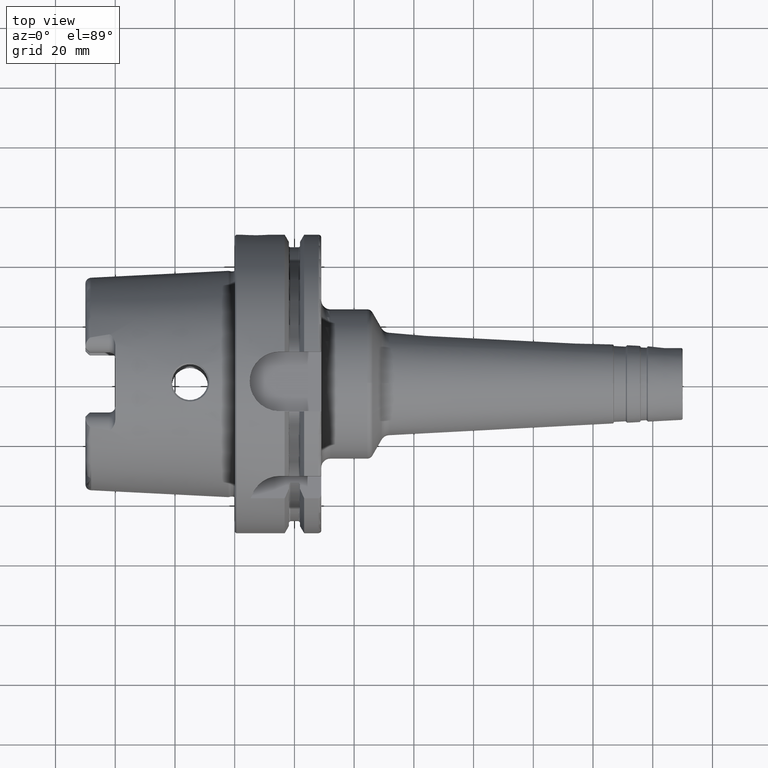
[diagram: clean part render]
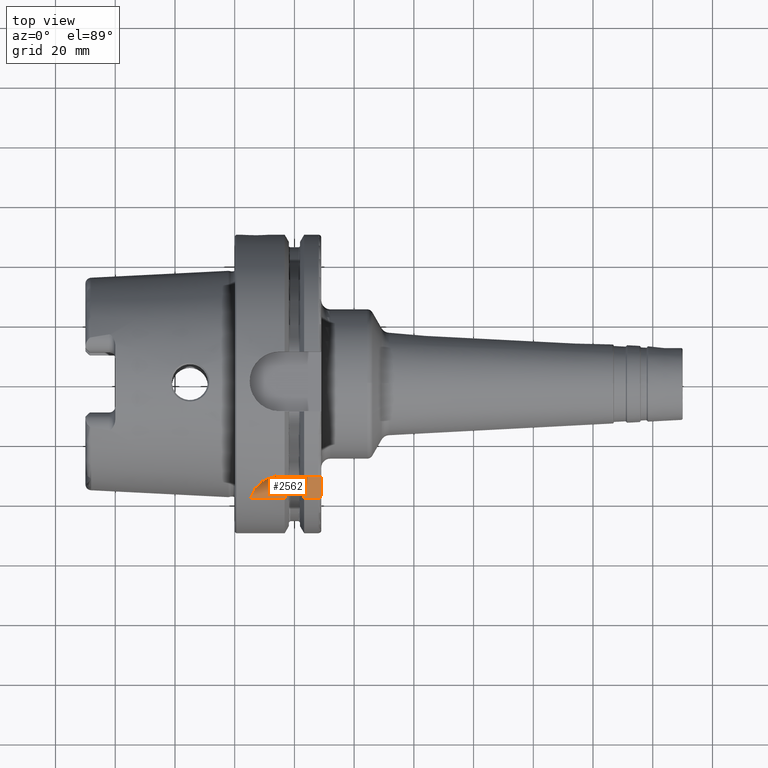
[diagram: same view with one face highlighted and labeled with its STEP entity id]
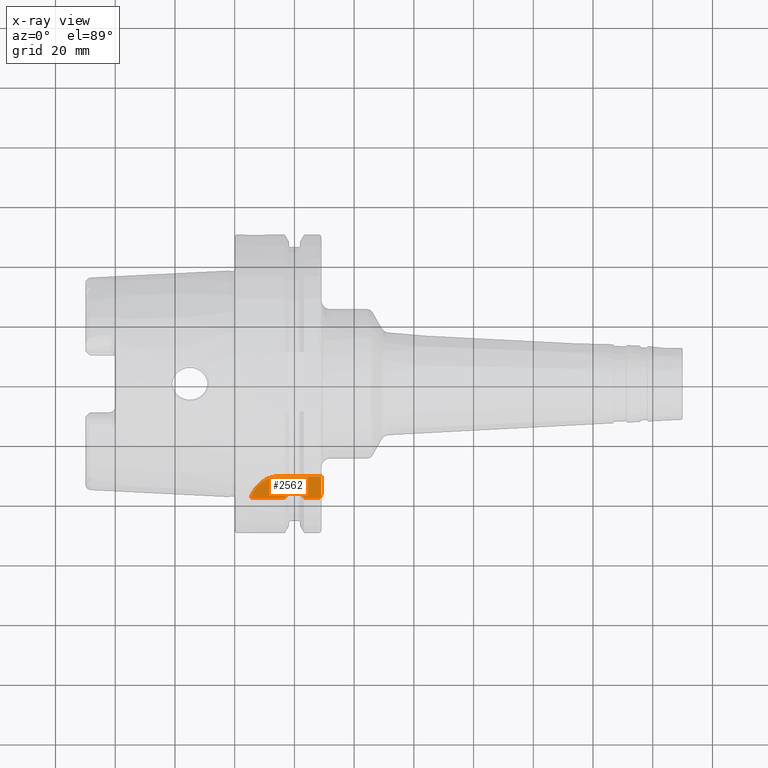
[diagram: x-ray of the same camera — body ghosted, the highlighted face saturated]
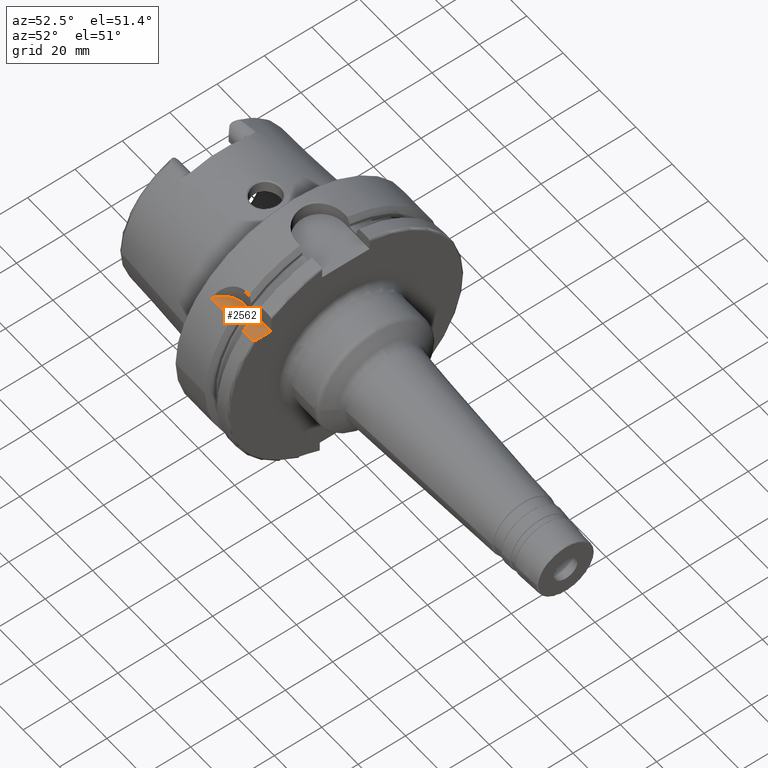
[diagram: same view with one face highlighted and labeled with its STEP entity id]
A machine part, top view. The second image highlights one B-rep face of the part: STEP entity #2562.
The next image is the same camera in x-ray: the body ghosted, the highlighted face saturated — about 0% of this face is hidden behind the body in this view.
A second angle (auxiliary view) of the same face is appended — the face is thin or edge-on in the first view.
In plain terms, the highlighted planar face has unit normal (0, 0, 1).
Its self-contained STEP definition (entity closure, byte-faithful):
#19=(
BOUNDED_CURVE()
B_SPLINE_CURVE(2,(#4997,#4998,#4999),.UNSPECIFIED.,.F.,.F.)
B_SPLINE_CURVE_WITH_KNOTS((3,3),(0.,0.343884390880417),.UNSPECIFIED.)
CURVE()
GEOMETRIC_REPRESENTATION_ITEM()
RATIONAL_B_SPLINE_CURVE((1.,1.00052016257104,1.))
REPRESENTATION_ITEM('')
);
#20=(
BOUNDED_CURVE()
B_SPLINE_CURVE(2,(#5029,#5030,#5031),.UNSPECIFIED.,.F.,.F.)
B_SPLINE_CURVE_WITH_KNOTS((3,3),(0.,0.343884390880419),.UNSPECIFIED.)
CURVE()
GEOMETRIC_REPRESENTATION_ITEM()
RATIONAL_B_SPLINE_CURVE((1.,1.00052016257005,1.))
REPRESENTATION_ITEM('')
);
#62=B_SPLINE_CURVE_WITH_KNOTS('',3,(#5003,#5004,#5005,#5006,#5007,#5008,
#5009,#5010,#5011,#5012),.UNSPECIFIED.,.F.,.F.,(4,2,2,2,4),(-0.175716275951496,
-0.15902214964786,-0.139262857016594,-0.115342898112829,-0.0876407705892815),
 .UNSPECIFIED.);
#63=B_SPLINE_CURVE_WITH_KNOTS('',3,(#5016,#5017,#5018,#5019,#5020,#5021,
#5022,#5023,#5024,#5025),.UNSPECIFIED.,.F.,.F.,(4,2,2,2,4),(0.0876407705892814,
0.115342898112828,0.139262857016592,0.15902214964786,0.175716275951495),
 .UNSPECIFIED.);
#64=B_SPLINE_CURVE_WITH_KNOTS('',3,(#5034,#5035,#5036,#5037,#5038,#5039,
#5040,#5041,#5042,#5043),.UNSPECIFIED.,.F.,.F.,(4,2,2,2,4),(-0.170825962094808,
-0.118543630596578,-0.0729156509442915,-0.0340271521483428,0.),
 .UNSPECIFIED.);
#153=PLANE('',#2858);
#187=LINE('',#4051,#301);
#230=LINE('',#4944,#344);
#235=LINE('',#4995,#349);
#236=LINE('',#5001,#350);
#237=LINE('',#5014,#351);
#238=LINE('',#5027,#352);
#239=LINE('',#5033,#353);
#301=VECTOR('',#3234,10.);
#344=VECTOR('',#3477,10.);
#349=VECTOR('',#3484,10.);
#350=VECTOR('',#3485,10.);
#351=VECTOR('',#3486,10.);
#352=VECTOR('',#3487,10.);
#353=VECTOR('',#3488,10.);
#485=FACE_OUTER_BOUND('',#625,.T.);
#625=EDGE_LOOP('',(#2039,#2040,#2041,#2042,#2043,#2044,#2045,#2046,#2047,
#2048,#2049,#2050,#2051));
#843=CIRCLE('',#2856,10.);
#1000=VERTEX_POINT('',#4049);
#1001=VERTEX_POINT('',#4050);
#1106=VERTEX_POINT('',#4924);
#1108=VERTEX_POINT('',#4938);
#1118=VERTEX_POINT('',#4994);
#1119=VERTEX_POINT('',#4996);
#1120=VERTEX_POINT('',#5000);
#1121=VERTEX_POINT('',#5002);
#1122=VERTEX_POINT('',#5013);
#1123=VERTEX_POINT('',#5015);
#1124=VERTEX_POINT('',#5026);
#1125=VERTEX_POINT('',#5028);
#1126=VERTEX_POINT('',#5032);
#1309=EDGE_CURVE('',#1000,#1001,#187,.T.);
#1447=EDGE_CURVE('',#1108,#1106,#843,.T.);
#1450=EDGE_CURVE('',#1000,#1108,#230,.T.);
#1460=EDGE_CURVE('',#1118,#1106,#235,.T.);
#1461=EDGE_CURVE('',#1119,#1118,#19,.T.);
#1462=EDGE_CURVE('',#1120,#1119,#236,.T.);
#1463=EDGE_CURVE('',#1121,#1120,#62,.T.);
#1464=EDGE_CURVE('',#1122,#1121,#237,.T.);
#1465=EDGE_CURVE('',#1123,#1122,#63,.T.);
#1466=EDGE_CURVE('',#1124,#1123,#238,.T.);
#1467=EDGE_CURVE('',#1125,#1124,#20,.T.);
#1468=EDGE_CURVE('',#1126,#1125,#239,.T.);
#1469=EDGE_CURVE('',#1001,#1126,#64,.T.);
#2039=ORIENTED_EDGE('',*,*,#1460,.F.);
#2040=ORIENTED_EDGE('',*,*,#1461,.F.);
#2041=ORIENTED_EDGE('',*,*,#1462,.F.);
#2042=ORIENTED_EDGE('',*,*,#1463,.F.);
#2043=ORIENTED_EDGE('',*,*,#1464,.F.);
#2044=ORIENTED_EDGE('',*,*,#1465,.F.);
#2045=ORIENTED_EDGE('',*,*,#1466,.F.);
#2046=ORIENTED_EDGE('',*,*,#1467,.F.);
#2047=ORIENTED_EDGE('',*,*,#1468,.F.);
#2048=ORIENTED_EDGE('',*,*,#1469,.F.);
#2049=ORIENTED_EDGE('',*,*,#1309,.F.);
#2050=ORIENTED_EDGE('',*,*,#1450,.T.);
#2051=ORIENTED_EDGE('',*,*,#1447,.T.);
#2562=ADVANCED_FACE('',(#485),#153,.T.);
#2856=AXIS2_PLACEMENT_3D('',#4939,#3471,#3472);
#2858=AXIS2_PLACEMENT_3D('',#4993,#3482,#3483);
#3234=DIRECTION('',(0.,-1.,0.));
#3471=DIRECTION('center_axis',(0.,0.,1.));
#3472=DIRECTION('ref_axis',(0.,1.,0.));
#3477=DIRECTION('',(-1.,3.17206578464331E-16,0.));
#3482=DIRECTION('center_axis',(0.,0.,1.));
#3483=DIRECTION('ref_axis',(1.,0.,0.));
#3484=DIRECTION('',(-1.,0.,0.));
#3485=DIRECTION('',(0.,-1.,0.));
#3486=DIRECTION('',(-1.,0.,0.));
#3487=DIRECTION('',(0.,1.,0.));
#3488=DIRECTION('',(-1.,0.,0.));
#4049=CARTESIAN_POINT('',(29.,-31.5,31.5));
#4050=CARTESIAN_POINT('',(29.,-37.5333185316726,31.5));
#4051=CARTESIAN_POINT('',(29.,-18.25,31.5));
#4924=CARTESIAN_POINT('',(5.36310214079494,-38.8297566307078,31.5));
#4938=CARTESIAN_POINT('',(15.,-31.5,31.5));
#4939=CARTESIAN_POINT('Origin',(15.,-41.5,31.5));
#4944=CARTESIAN_POINT('',(29.,-31.5,31.5));
#4993=CARTESIAN_POINT('Origin',(17.,-36.5,31.5));
#4994=CARTESIAN_POINT('',(16.7379709790786,-38.8297566307078,31.5));
#4995=CARTESIAN_POINT('',(8.61898548953931,-38.8297566307078,31.5));
#4996=CARTESIAN_POINT('',(18.125,-35.6830642593065,31.5));
#4997=CARTESIAN_POINT('Ctrl Pts',(18.125,-35.6830642593066,31.5));
#4998=CARTESIAN_POINT('Ctrl Pts',(17.4607727557241,-37.2176818849689,31.5));
#4999=CARTESIAN_POINT('Ctrl Pts',(16.7379709790786,-38.8297566307079,31.5));
#5000=CARTESIAN_POINT('',(18.125,-34.2052627529741,31.5));
#5001=CARTESIAN_POINT('',(18.125,5.,31.5));
#5002=CARTESIAN_POINT('',(18.625,-33.5223805837235,31.5));
#5003=CARTESIAN_POINT('Ctrl Pts',(18.625,-33.5223805837235,31.5));
#5004=CARTESIAN_POINT('Ctrl Pts',(18.5693529123212,-33.5223805837235,31.5));
#5005=CARTESIAN_POINT('Ctrl Pts',(18.5045806209474,-33.538617945543,31.5));
#5006=CARTESIAN_POINT('Ctrl Pts',(18.3957531993943,-33.5926698815421,31.5));
#5007=CARTESIAN_POINT('Ctrl Pts',(18.3354671583148,-33.6437821851056,31.5));
#5008=CARTESIAN_POINT('Ctrl Pts',(18.2428076522704,-33.7560891280603,31.5));
#5009=CARTESIAN_POINT('Ctrl Pts',(18.1981986617216,-33.8407334953009,31.5));
#5010=CARTESIAN_POINT('Ctrl Pts',(18.1422893312478,-34.003470946295,31.5));
#5011=CARTESIAN_POINT('Ctrl Pts',(18.125,-34.1129223278956,31.5));
#5012=CARTESIAN_POINT('Ctrl Pts',(18.125,-34.2052627529741,31.5));
#5013=CARTESIAN_POINT('',(21.375,-33.5223805837235,31.5));
#5014=CARTESIAN_POINT('',(20.,-33.5223805837235,31.5));
#5015=CARTESIAN_POINT('',(21.875,-34.2052627529741,31.5));
#5016=CARTESIAN_POINT('Ctrl Pts',(21.875,-34.2052627529741,31.5));
#5017=CARTESIAN_POINT('Ctrl Pts',(21.875,-34.1129223278957,31.5));
#5018=CARTESIAN_POINT('Ctrl Pts',(21.8577106687523,-34.003470946295,31.5));
#5019=CARTESIAN_POINT('Ctrl Pts',(21.8018013382784,-33.8407334953009,31.5));
#5020=CARTESIAN_POINT('Ctrl Pts',(21.7571923477296,-33.7560891280604,31.5));
#5021=CARTESIAN_POINT('Ctrl Pts',(21.6645328416852,-33.6437821851056,31.5));
#5022=CARTESIAN_POINT('Ctrl Pts',(21.6042468006057,-33.5926698815421,31.5));
#5023=CARTESIAN_POINT('Ctrl Pts',(21.4954193790526,-33.538617945543,31.5));
#5024=CARTESIAN_POINT('Ctrl Pts',(21.4306470876788,-33.5223805837235,31.5));
#5025=CARTESIAN_POINT('Ctrl Pts',(21.375,-33.5223805837235,31.5));
#5026=CARTESIAN_POINT('',(21.875,-35.6830642593065,31.5));
#5027=CARTESIAN_POINT('',(21.875,5.54879763209582,31.5));
#5028=CARTESIAN_POINT('',(23.2620290209214,-38.8297566307078,31.5));
#5029=CARTESIAN_POINT('Ctrl Pts',(23.2620290209214,-38.8297566307078,31.5));
#5030=CARTESIAN_POINT('Ctrl Pts',(22.5392272442767,-37.2176818849707,31.5));
#5031=CARTESIAN_POINT('Ctrl Pts',(21.875,-35.6830642593065,31.5));
#5032=CARTESIAN_POINT('',(28.,-38.8297566307078,31.5));
#5033=CARTESIAN_POINT('',(25.6310145104607,-38.8297566307078,31.5));
#5034=CARTESIAN_POINT('Ctrl Pts',(29.,-37.5333185316726,31.5));
#5035=CARTESIAN_POINT('Ctrl Pts',(29.,-37.7075929700001,31.5));
#5036=CARTESIAN_POINT('Ctrl Pts',(28.9664820083304,-37.9140187901503,31.5));
#5037=CARTESIAN_POINT('Ctrl Pts',(28.8572425149189,-38.2215616508799,31.5));
#5038=CARTESIAN_POINT('Ctrl Pts',(28.7693181429129,-38.3814988424326,31.5));
#5039=CARTESIAN_POINT('Ctrl Pts',(28.5860354601279,-38.5954486383736,31.5));
#5040=CARTESIAN_POINT('Ctrl Pts',(28.4650491410143,-38.6932205975694,31.5));
#5041=CARTESIAN_POINT('Ctrl Pts',(28.2458099245109,-38.7981421072727,31.5));
#5042=CARTESIAN_POINT('Ctrl Pts',(28.1134238404945,-38.8297566307078,31.5));
#5043=CARTESIAN_POINT('Ctrl Pts',(28.,-38.8297566307078,31.5));